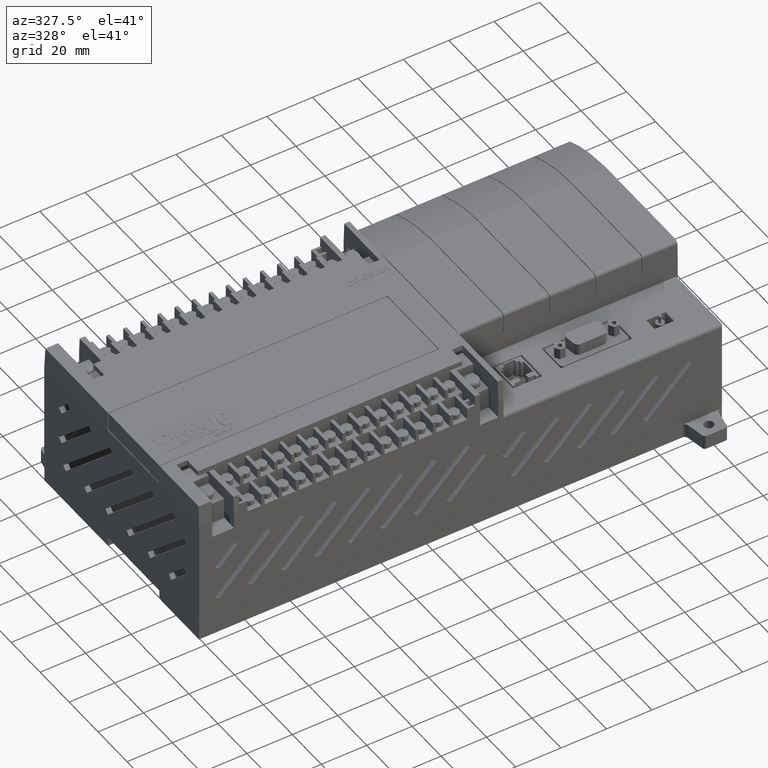
[diagram: clean part render]
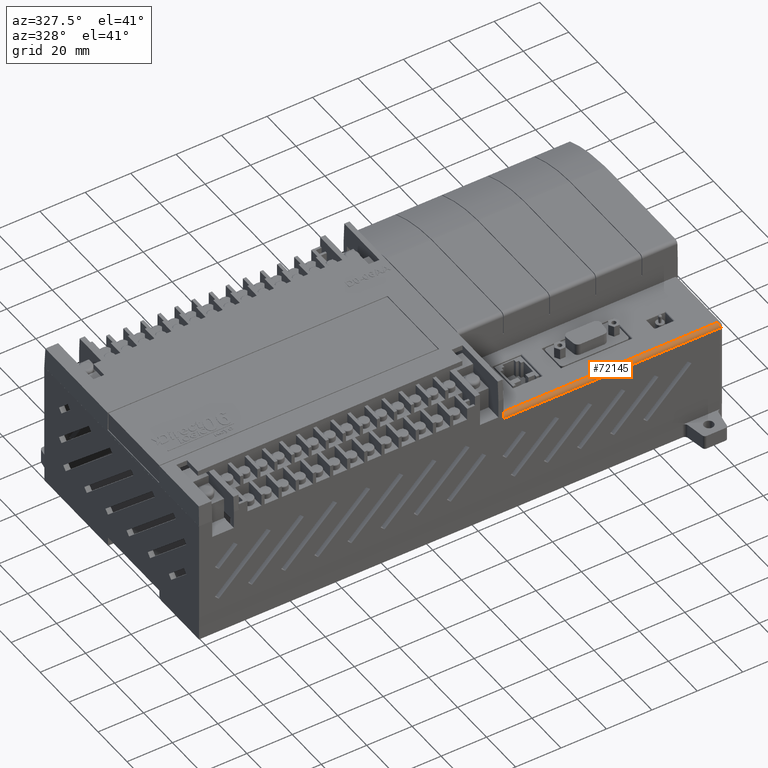
[diagram: same view with one face highlighted and labeled with its STEP entity id]
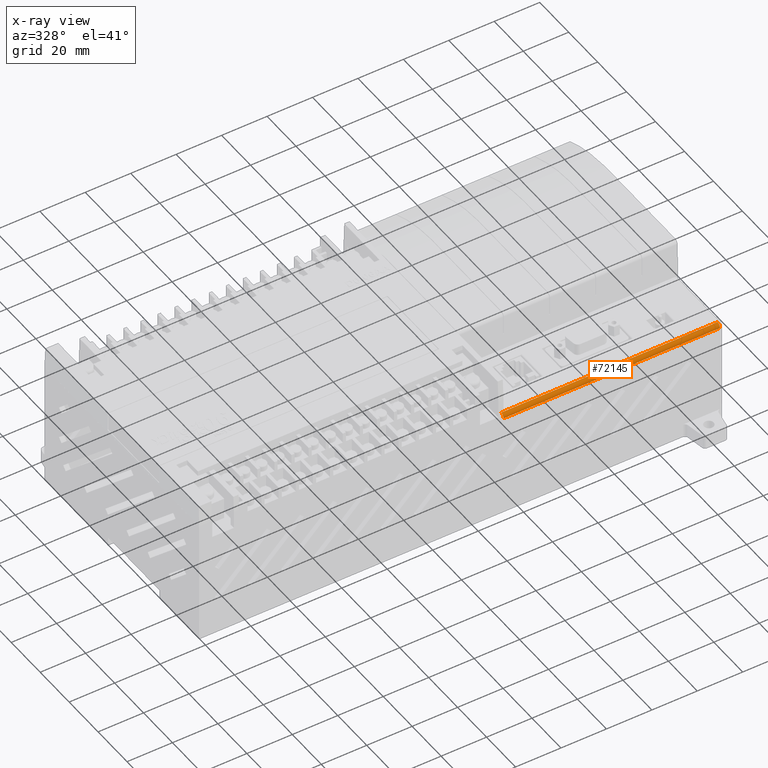
[diagram: x-ray of the same camera — body ghosted, the highlighted face saturated]
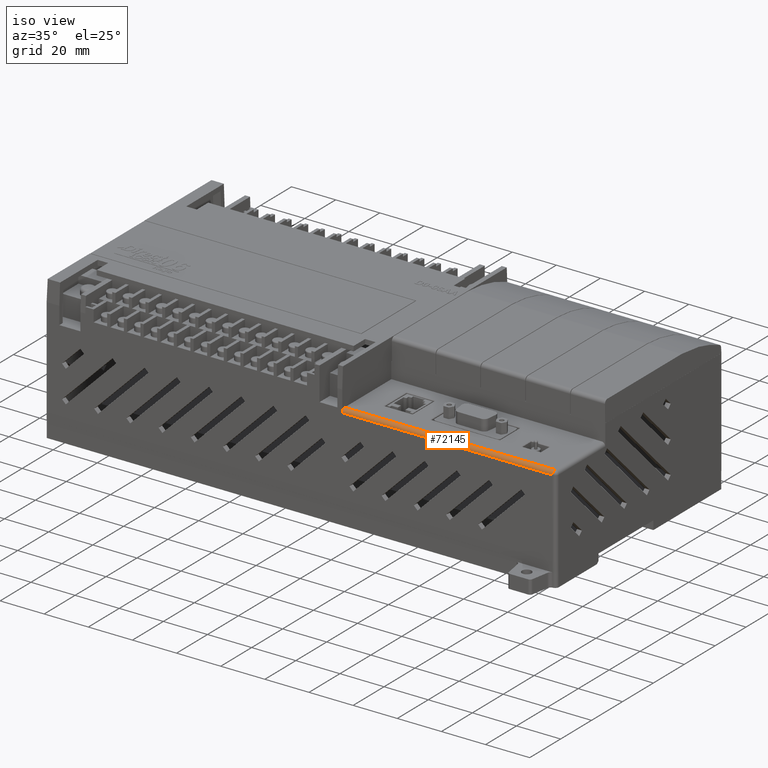
[diagram: same view with one face highlighted and labeled with its STEP entity id]
A machine part, auxiliary view. The second image highlights one B-rep face of the part: STEP entity #72145.
The next image is the same camera in x-ray: the body ghosted, the highlighted face saturated — about 0% of this face is hidden behind the body in this view.
A second angle (iso view) of the same face is appended — the face is thin or edge-on in the first view.
In plain terms, the highlighted cylindrical surface (edge-blend (fillet) strip) has radius 1.651 mm, axis along (1, 0, 0).
Its self-contained STEP definition (entity closure, byte-faithful):
#4160 = VERTEX_POINT ( 'NONE', #19173 ) ;
#4165 = EDGE_CURVE ( 'NONE', #4160, #4168, #19171, .T. ) ;
#4168 = VERTEX_POINT ( 'NONE', #19162 ) ;
#4466 = VERTEX_POINT ( 'NONE', #19678 ) ;
#4470 = EDGE_CURVE ( 'NONE', #4466, #4160, #19798, .T. ) ;
#6485 = EDGE_CURVE ( 'NONE', #4168, #6486, #22822, .T. ) ;
#6486 = VERTEX_POINT ( 'NONE', #22818 ) ;
#19162 = CARTESIAN_POINT ( 'NONE',  ( 2.011649015748029800, 0.06206763333324413800, 5.144550000000001500 ) ) ;
#19163 = DIRECTION ( 'NONE',  ( -4.202843067175755400E-015, 0.0000000000000000000, 1.000000000000000000 ) ) ;
#19165 = DIRECTION ( 'NONE',  ( -1.000000000000000000, 0.0000000000000000000, -3.491483361109382100E-015 ) ) ;
#19167 = CARTESIAN_POINT ( 'NONE',  ( 2.011649015748029800, 0.06206763333324413800, 5.079550000000002000 ) ) ;
#19169 = AXIS2_PLACEMENT_3D ( 'NONE', #19167, #19165, #19163 ) ;
#19171 = CIRCLE ( 'NONE', #19169, 0.06500000000000053000 ) ;
#19173 = CARTESIAN_POINT ( 'NONE',  ( 2.011649015748029800, -0.002932366666755848900, 5.079550000000002000 ) ) ;
#19678 = CARTESIAN_POINT ( 'NONE',  ( 5.762549015748029500, -0.002932366666755848900, 5.079550000000015300 ) ) ;
#19795 = DIRECTION ( 'NONE',  ( -1.000000000000000000, -0.0000000000000000000, -3.491483361109382100E-015 ) ) ;
#19796 = VECTOR ( 'NONE', #19795, 39.37007874015748100 ) ;
#19797 = CARTESIAN_POINT ( 'NONE',  ( -3.262450984251969600, -0.002932366666755848900, 5.079549999999983400 ) ) ;
#19798 = LINE ( 'NONE', #19797, #19796 ) ;
#22818 = CARTESIAN_POINT ( 'NONE',  ( 5.762549015748029500, 0.06206763333324412400, 5.144550000000014800 ) ) ;
#22819 = DIRECTION ( 'NONE',  ( 1.000000000000000000, 0.0000000000000000000, 3.491483361109382100E-015 ) ) ;
#22820 = VECTOR ( 'NONE', #22819, 39.37007874015748100 ) ;
#22821 = CARTESIAN_POINT ( 'NONE',  ( 2.011649015748029800, 0.06206763333324413800, 5.144550000000001500 ) ) ;
#22822 = LINE ( 'NONE', #22821, #22820 ) ;
#28528 = FACE_OUTER_BOUND ( 'NONE', #72147, .T. ) ;
#28548 = DIRECTION ( 'NONE',  ( 1.000000000000000000, -8.405686134351581800E-015, 3.491483361109380100E-015 ) ) ;
#28549 = CARTESIAN_POINT ( 'NONE',  ( 5.762549015748030400, 0.06206763333324413800, 5.079550000000015300 ) ) ;
#28550 = AXIS2_PLACEMENT_3D ( 'NONE', #28549, #28548, #28595 ) ;
#28552 = DIRECTION ( 'NONE',  ( 4.202843067175755400E-015, 0.0000000000000000000, -1.000000000000000000 ) ) ;
#28553 = DIRECTION ( 'NONE',  ( 1.000000000000000000, 0.0000000000000000000, 3.491483361109382100E-015 ) ) ;
#28554 = CARTESIAN_POINT ( 'NONE',  ( 2.011649015748029800, 0.06206763333324413800, 5.079550000000002000 ) ) ;
#28555 = AXIS2_PLACEMENT_3D ( 'NONE', #28554, #28553, #28552 ) ;
#28556 = CIRCLE ( 'NONE', #28550, 0.06499999999999998800 ) ;
#28557 = CYLINDRICAL_SURFACE ( 'NONE', #28555, 0.06500000000000053000 ) ;
#28595 = DIRECTION ( 'NONE',  ( 1.681137226870316000E-014, 1.000000000000000000, 0.0000000000000000000 ) ) ;
#72145 = ADVANCED_FACE ( 'NONE', ( #28528 ), #28557, .T. ) ;
#72147 = EDGE_LOOP ( 'NONE', ( #72149, #72150, #72151, #72154 ) ) ;
#72149 = ORIENTED_EDGE ( 'NONE', *, *, #4165, .F. ) ;
#72150 = ORIENTED_EDGE ( 'NONE', *, *, #4470, .F. ) ;
#72151 = ORIENTED_EDGE ( 'NONE', *, *, #72152, .F. ) ;
#72152 = EDGE_CURVE ( 'NONE', #6486, #4466, #28556, .T. ) ;
#72154 = ORIENTED_EDGE ( 'NONE', *, *, #6485, .F. ) ;